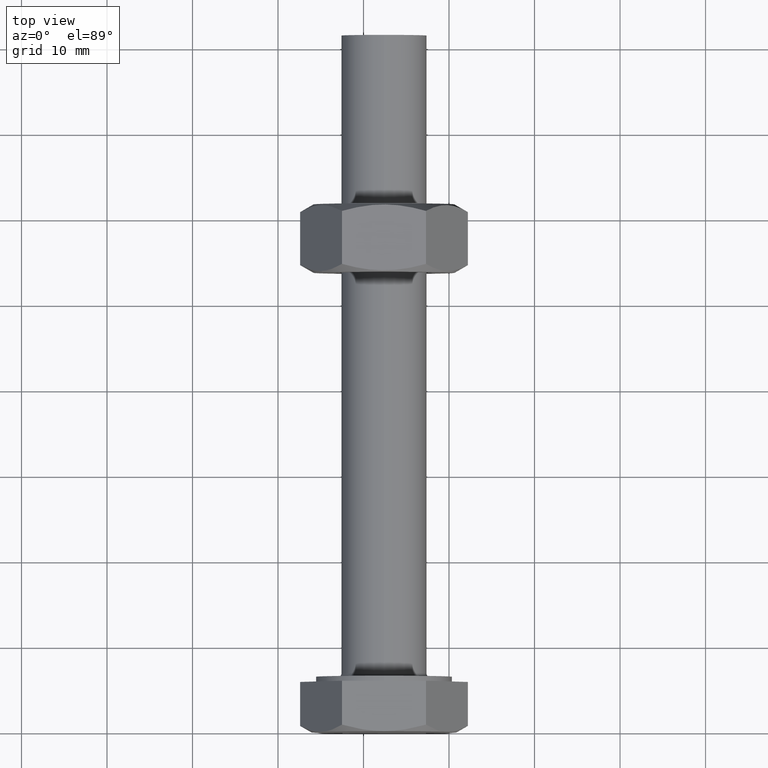
[diagram: clean part render]
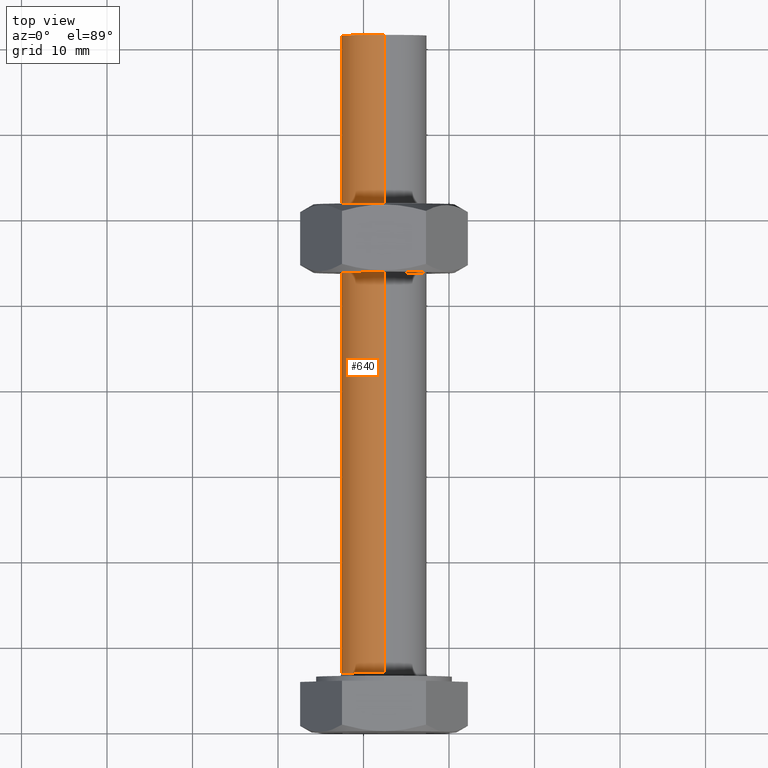
[diagram: same view with one face highlighted and labeled with its STEP entity id]
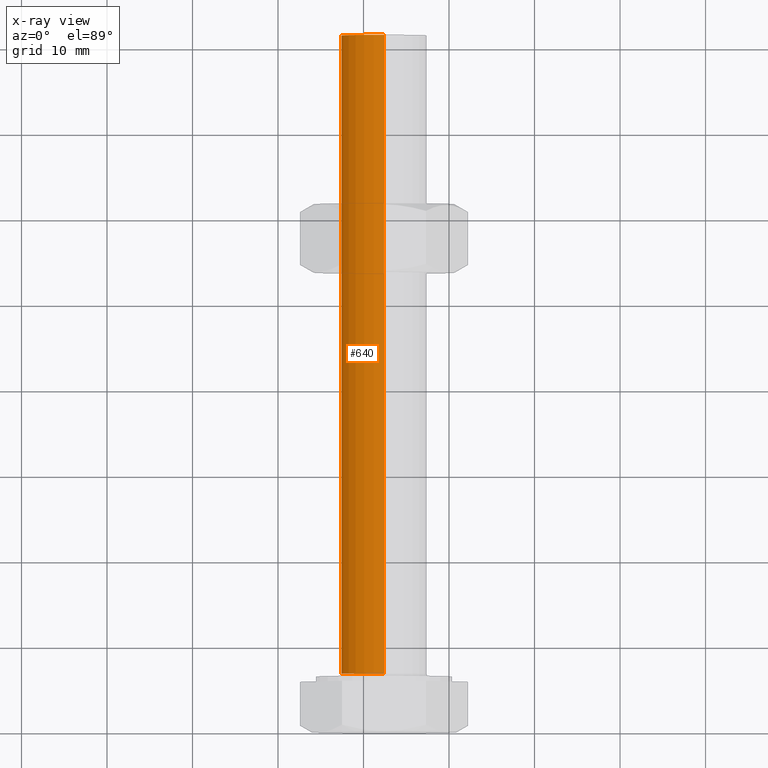
[diagram: x-ray of the same camera — body ghosted, the highlighted face saturated]
A machine part, top view. The second image highlights one B-rep face of the part: STEP entity #640.
The next image is the same camera in x-ray: the body ghosted, the highlighted face saturated — about 0% of this face is hidden behind the body in this view.
In plain terms, the highlighted cylindrical surface (partial cylindrical patch) has radius 5 mm, axis along (0, -1, -0).
Its self-contained STEP definition (entity closure, byte-faithful):
#62 = CARTESIAN_POINT ( 'NONE',  ( 6.899999999999999500, 0.0000000000000000000, 5.000000000000000000 ) ) ;
#116 = CARTESIAN_POINT ( 'NONE',  ( 6.899999999999999500, 0.0000000000000000000, 0.0000000000000000000 ) ) ;
#123 = CARTESIAN_POINT ( 'NONE',  ( 81.50000000000001400, 0.0000000000000000000, 5.000000000000000900 ) ) ;
#139 = EDGE_CURVE ( 'NONE', #364, #927, #331, .T. ) ;
#205 = CYLINDRICAL_SURFACE ( 'NONE', #926, 5.000000000000000000 ) ;
#213 = AXIS2_PLACEMENT_3D ( 'NONE', #116, #876, #231 ) ;
#226 = EDGE_CURVE ( 'NONE', #375, #364, #551, .T. ) ;
#231 = DIRECTION ( 'NONE',  ( 0.0000000000000000000, 0.0000000000000000000, -1.000000000000000000 ) ) ;
#262 = DIRECTION ( 'NONE',  ( -1.000000000000000000, -0.0000000000000000000, -0.0000000000000000000 ) ) ;
#271 = CIRCLE ( 'NONE', #511, 5.000000000000000900 ) ;
#279 = VECTOR ( 'NONE', #262, 1000.000000000000000 ) ;
#326 = ORIENTED_EDGE ( 'NONE', *, *, #226, .T. ) ;
#331 = CIRCLE ( 'NONE', #213, 5.000000000000000000 ) ;
#364 = VERTEX_POINT ( 'NONE', #781 ) ;
#375 = VERTEX_POINT ( 'NONE', #1083 ) ;
#390 = DIRECTION ( 'NONE',  ( 1.000000000000000000, 0.0000000000000000000, 0.0000000000000000000 ) ) ;
#511 = AXIS2_PLACEMENT_3D ( 'NONE', #1023, #390, #1135 ) ;
#538 = VERTEX_POINT ( 'NONE', #123 ) ;
#551 = LINE ( 'NONE', #782, #1372 ) ;
#589 = CARTESIAN_POINT ( 'NONE',  ( 0.0000000000000000000, 0.0000000000000000000, 5.000000000000000000 ) ) ;
#610 = DIRECTION ( 'NONE',  ( 0.0000000000000000000, 0.0000000000000000000, 1.000000000000000000 ) ) ;
#640 = ADVANCED_FACE ( 'NONE', ( #820 ), #205, .T. ) ;
#655 = ORIENTED_EDGE ( 'NONE', *, *, #673, .F. ) ;
#673 = EDGE_CURVE ( 'NONE', #538, #927, #888, .T. ) ;
#781 = CARTESIAN_POINT ( 'NONE',  ( 6.899999999999999500, 6.123233995736766300E-016, -5.000000000000000000 ) ) ;
#782 = CARTESIAN_POINT ( 'NONE',  ( 0.0000000000000000000, 6.123233995736766300E-016, -5.000000000000000000 ) ) ;
#820 = FACE_OUTER_BOUND ( 'NONE', #1213, .T. ) ;
#864 = ORIENTED_EDGE ( 'NONE', *, *, #1357, .F. ) ;
#876 = DIRECTION ( 'NONE',  ( 1.000000000000000000, 0.0000000000000000000, -0.0000000000000000000 ) ) ;
#888 = LINE ( 'NONE', #589, #279 ) ;
#926 = AXIS2_PLACEMENT_3D ( 'NONE', #1239, #1021, #610 ) ;
#927 = VERTEX_POINT ( 'NONE', #62 ) ;
#1021 = DIRECTION ( 'NONE',  ( -1.000000000000000000, -0.0000000000000000000, -0.0000000000000000000 ) ) ;
#1023 = CARTESIAN_POINT ( 'NONE',  ( 81.50000000000001400, 0.0000000000000000000, 0.0000000000000000000 ) ) ;
#1083 = CARTESIAN_POINT ( 'NONE',  ( 81.50000000000001400, 6.123233995736767300E-016, -5.000000000000000900 ) ) ;
#1106 = DIRECTION ( 'NONE',  ( -1.000000000000000000, -0.0000000000000000000, -0.0000000000000000000 ) ) ;
#1135 = DIRECTION ( 'NONE',  ( 0.0000000000000000000, 0.0000000000000000000, -1.000000000000000000 ) ) ;
#1178 = ORIENTED_EDGE ( 'NONE', *, *, #139, .T. ) ;
#1213 = EDGE_LOOP ( 'NONE', ( #864, #326, #1178, #655 ) ) ;
#1239 = CARTESIAN_POINT ( 'NONE',  ( 0.0000000000000000000, 0.0000000000000000000, 0.0000000000000000000 ) ) ;
#1357 = EDGE_CURVE ( 'NONE', #375, #538, #271, .T. ) ;
#1372 = VECTOR ( 'NONE', #1106, 1000.000000000000000 ) ;